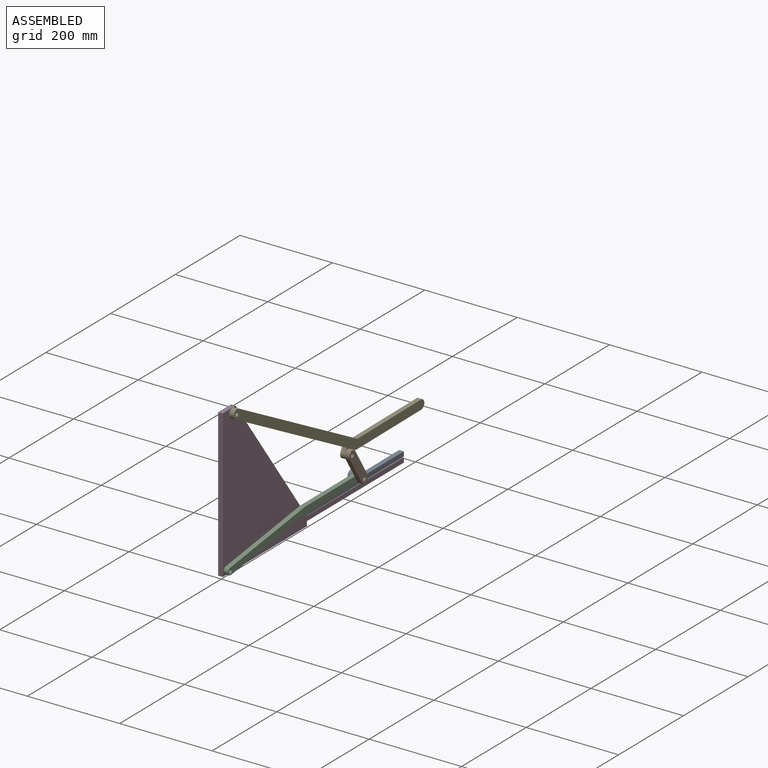
[diagram: assembled view]
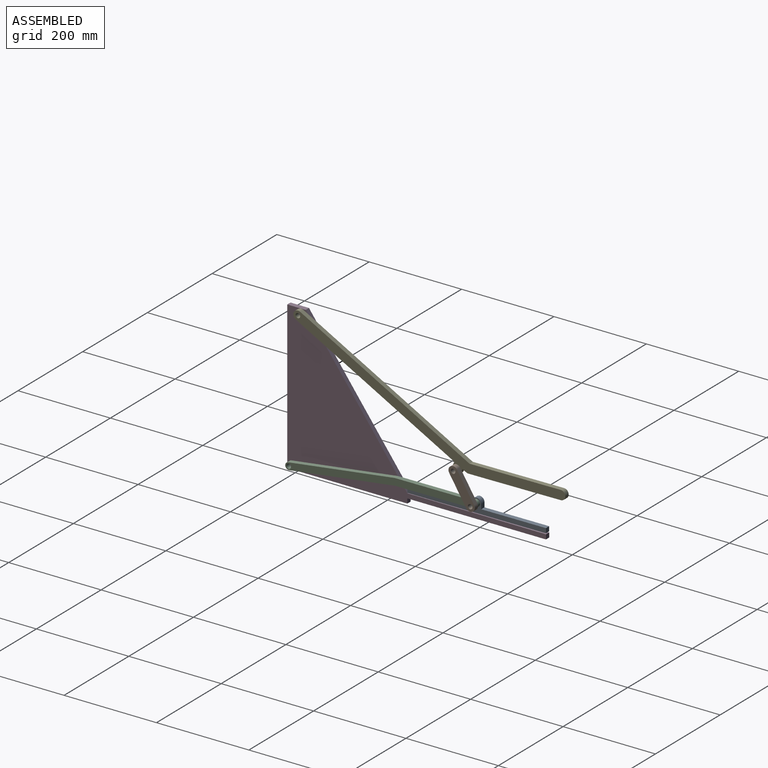
[diagram: assembled view, second angle]
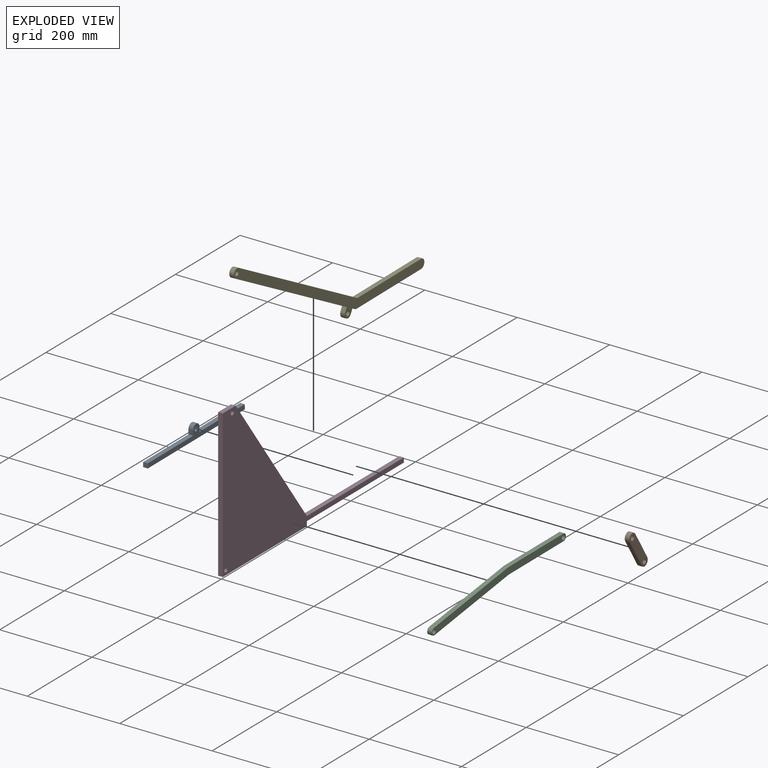
[diagram: exploded view]
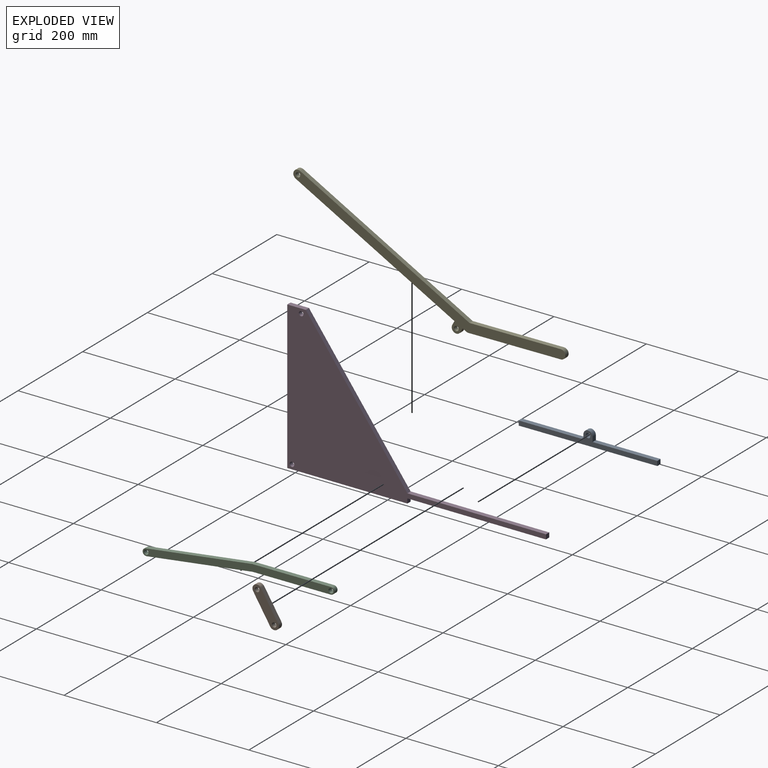
[diagram: exploded view, second angle]
ASSEMBLY  parts=5 mates=5
PART A: 11 faces, bbox 10x300x30 mm
  f0: plane 10x10mm, normal (0,1,0), area 100mm2, adj f1,f8,f9,f10
  f1: cylinder r=10mm len=20mm, axis (-1,0,0), area 314.2mm2, adj f0,f2,f9,f10
  f2: plane 10x10mm, normal (0,-1,0), area 100mm2, adj f1,f3,f9,f10
  f3: plane 140x10mm, normal (0,0,1), area 1400mm2, adj f2,f4,f9,f10
  f4: plane 10x10mm, normal (0,-1,0), area 100mm2, adj f3,f5,f9,f10
  f5: plane 300x10mm, normal (0,0,-1), area 3000mm2, adj f4,f6,f9,f10
  f6: plane 10x10mm, normal (0,1,0), area 100mm2, adj f5,f8,f9,f10
  f7: cylinder r=5mm len=10mm, axis (-1,0,0), area 314.2mm2, adj f9,f10
  f8: plane 140x10mm, normal (0,0,1), area 1400mm2, adj f0,f6,f9,f10
  f9: plane 300x30mm, normal (1,0,0), area 3278.5mm2, adj f0,f1,f2,f3,f4,f5,f6,f7
  f10: plane 300x30mm, normal (-1,0,0), area 3278.5mm2, adj f0,f1,f2,f3,f4,f5,f6,f7
PART B: 8 faces, bbox 10x58.7x78.3 mm
  f0: cylinder r=10mm len=18.33mm, axis (-1,0,0), area 314.2mm2, adj f1,f5,f6,f7
  f1: plane 58.31x38.74mm, normal (0,-0.83,-0.55), area 700mm2, adj f0,f2,f6,f7
  f2: cylinder r=10mm len=18.33mm, axis (-1,0,0), area 314.2mm2, adj f1,f5,f6,f7
  f3: cylinder r=5mm len=10mm, axis (-1,0,0), area 314.2mm2, adj f6,f7
  f4: cylinder r=5mm len=10mm, axis (-1,0,0), area 314.2mm2, adj f6,f7
  f5: plane 58.31x38.74mm, normal (0,0.83,0.55), area 700mm2, adj f0,f2,f6,f7
  f6: plane 78.31x58.74mm, normal (1,0,0), area 1557.1mm2, adj f0,f1,f2,f3,f4,f5
  f7: plane 78.31x58.74mm, normal (-1,0,0), area 1557.1mm2, adj f0,f1,f2,f3,f4,f5
PART C: 11 faces, bbox 10x415x45 mm
  f0: plane 230x30mm, normal (0,-0.13,0.99), area 2319.5mm2, adj f1,f8,f9,f10
  f1: cylinder r=7.5mm len=14.94mm, axis (-1,0,0), area 235.6mm2, adj f0,f2,f9,f10
  f2: plane 229.52x29.94mm, normal (0,0.13,-0.99), area 2314.6mm2, adj f1,f3,f9,f10
  f3: plane 169.51x10mm, normal (0,0,-1), area 1695.1mm2, adj f2,f4,f9,f10
  f4: cylinder r=7.5mm len=15mm, axis (-1,0,0), area 235.6mm2, adj f3,f5,f9,f10
  f5: plane 170x10mm, normal (0,0,1), area 1700mm2, adj f4,f8,f9,f10
  f6: cylinder r=5mm len=10mm, axis (-1,0,0), area 314.2mm2, adj f9,f10
  f7: cylinder r=5mm len=10mm, axis (-1,0,0), area 314.2mm2, adj f9,f10
  f8: cylinder r=7.5mm len=10mm, axis (-1,0,0), area 9.7mm2, adj f0,f5,f9,f10
  f9: plane 415x45mm, normal (1,0,0), area 6048.9mm2, adj f0,f1,f2,f3,f4,f5,f6,f7
  f10: plane 415x45mm, normal (-1,0,0), area 6048.9mm2, adj f0,f1,f2,f3,f4,f5,f6,f7
PART D: 12 faces, bbox 10x560x320 mm
  f0: plane 300x10mm, normal (0,0,1), area 3000mm2, adj f1,f8,f10,f11
  f1: plane 300x220mm, normal (0,0.81,0.59), area 3720.2mm2, adj f0,f2,f10,f11
  f2: plane 40x10mm, normal (0,0,1), area 400mm2, adj f1,f3,f10,f11
  f3: plane 320x10mm, normal (0,-1,0), area 3200mm2, adj f2,f4,f10,f11
  f4: plane 260x10mm, normal (0,0,-1), area 2600mm2, adj f3,f5,f10,f11
  f5: plane 10x10mm, normal (0,1,0), area 100mm2, adj f4,f6,f10,f11
  f6: plane 300x10mm, normal (0,0,-1), area 3000mm2, adj f5,f8,f10,f11
  f7: cylinder r=5mm len=10mm, axis (-1,0,0), area 314.2mm2, adj f10,f11
  f8: plane 10x10mm, normal (0,1,0), area 100mm2, adj f0,f6,f10,f11
  f9: cylinder r=5mm len=10mm, axis (-1,0,0), area 314.2mm2, adj f10,f11
  f10: plane 560x320mm, normal (1,0,0), area 53042.9mm2, adj f0,f1,f2,f3,f4,f5,f6,f7
  f11: plane 560x320mm, normal (-1,0,0), area 53042.9mm2, adj f0,f1,f2,f3,f4,f5,f6,f7
PART E: 15 faces, bbox 10x587.5x231.7 mm
  f0: cylinder r=10mm len=10mm, axis (-1,0,0), area 50.5mm2, adj f1,f12,f13,f14
  f1: plane 200x10mm, normal (0,0,-1), area 2000mm2, adj f0,f2,f13,f14
  f2: cylinder r=10mm len=20mm, axis (-1,0,0), area 314.2mm2, adj f1,f3,f13,f14
  f3: plane 197.42x10mm, normal (0,0,1), area 1974.2mm2, adj f2,f4,f13,f14
  f4: plane 365.23x202.1mm, normal (0,0.48,0.87), area 4174.2mm2, adj f3,f5,f13,f14
  f5: cylinder r=10mm len=18.75mm, axis (-1,0,0), area 314.2mm2, adj f4,f6,f13,f14
  f6: plane 342.2x189.35mm, normal (0,-0.48,-0.87), area 3910.9mm2, adj f5,f7,f13,f14
  f7: plane 10x8.75mm, normal (0,-0.87,0.48), area 100mm2, adj f6,f8,f13,f14
  f8: cylinder r=10mm len=18.75mm, axis (-1,0,0), area 314.2mm2, adj f7,f9,f13,f14
  f9: plane 10x8.75mm, normal (0,0.87,-0.48), area 100mm2, adj f8,f12,f13,f14
  f10: cylinder r=5mm len=10mm, axis (-1,0,0), area 314.2mm2, adj f13,f14
  f11: cylinder r=5mm len=10mm, axis (-1,0,0), area 314.2mm2, adj f13,f14
  f12: plane 10x7.79mm, normal (0,-0.48,-0.87), area 89.1mm2, adj f0,f9,f13,f14
  f13: plane 587.49x231.69mm, normal (1,0,0), area 12913.6mm2, adj f0,f1,f2,f3,f4,f5,f6,f7
  f14: plane 587.49x231.69mm, normal (-1,0,0), area 12913.6mm2, adj f0,f1,f2,f3,f4,f5,f6,f7
PLACE A rot(axis=(1,0,0),0.2deg) t=(0,0,0)mm
PLACE B rot(axis=(-1,0,0),1.7deg) t=(20,-0.84,13.63)mm
PLACE C rot(axis=(1,0,0),0.2deg) t=(10,0,0)mm
PLACE D at identity fixed
PLACE E rot(axis=(1,0,0),0.5deg) t=(10,2.36,-0.15)mm
MATE fastened A.f1 <-> C.f4  axis (1,0,0) through (10,399.88,31.55)mm
MATE revolute D.f9 <-> C.f1  axis (1,0,0) through (10,0,0)mm
MATE revolute E.f8 <-> B.f0  axis (1,0,0) through (20,362.92,91)mm
MATE revolute B.f2 <-> C.f4  axis (-1,0,0) through (20,399.88,31.55)mm
MATE revolute D.f7 <-> E.f5  axis (1,0,0) through (10,20,300)mm
